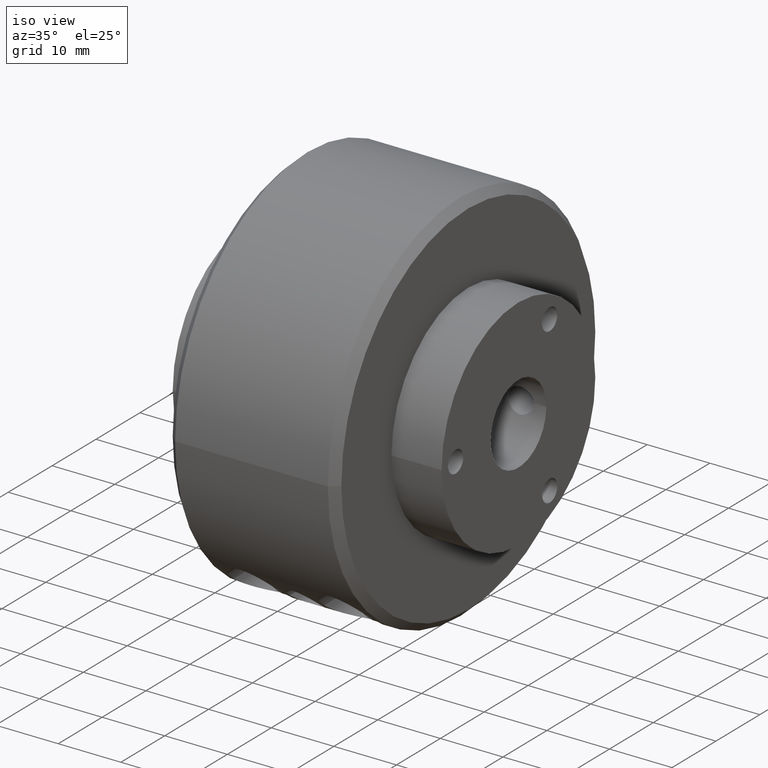
[diagram: clean part render]
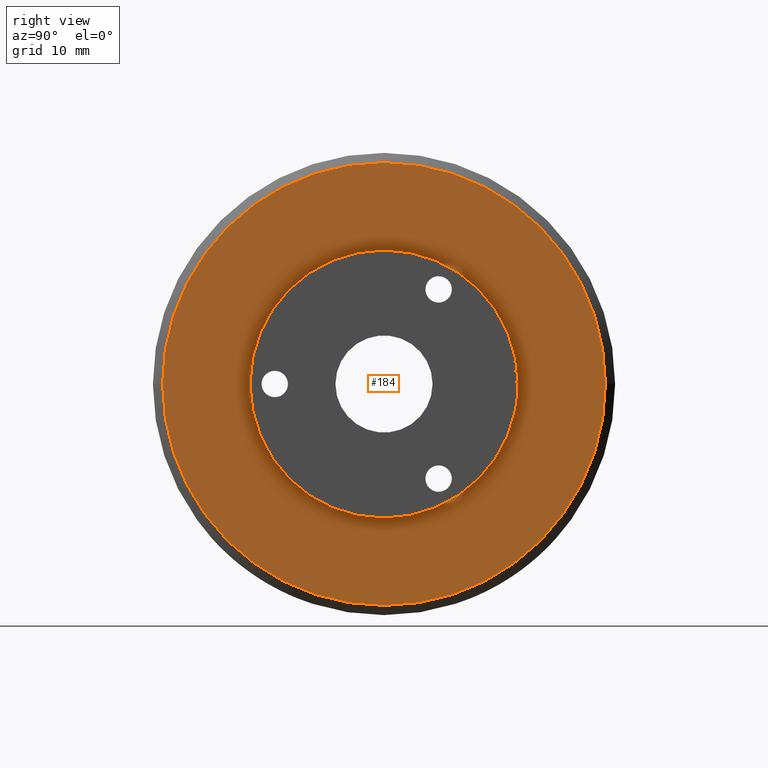
[diagram: tour spotlight — one face highlighted and labeled with its STEP entity id]
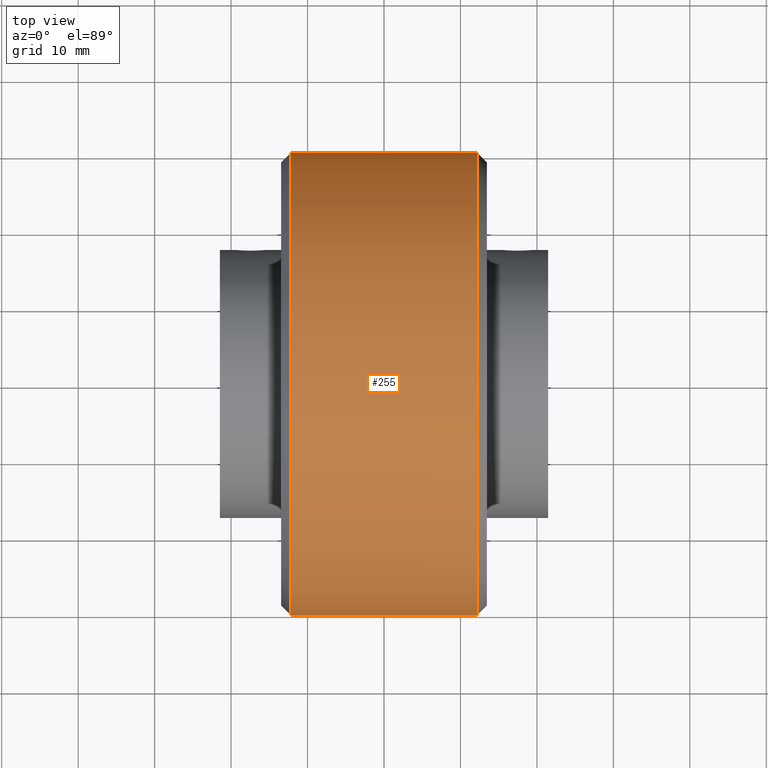
[diagram: tour spotlight — one face highlighted and labeled with its STEP entity id]
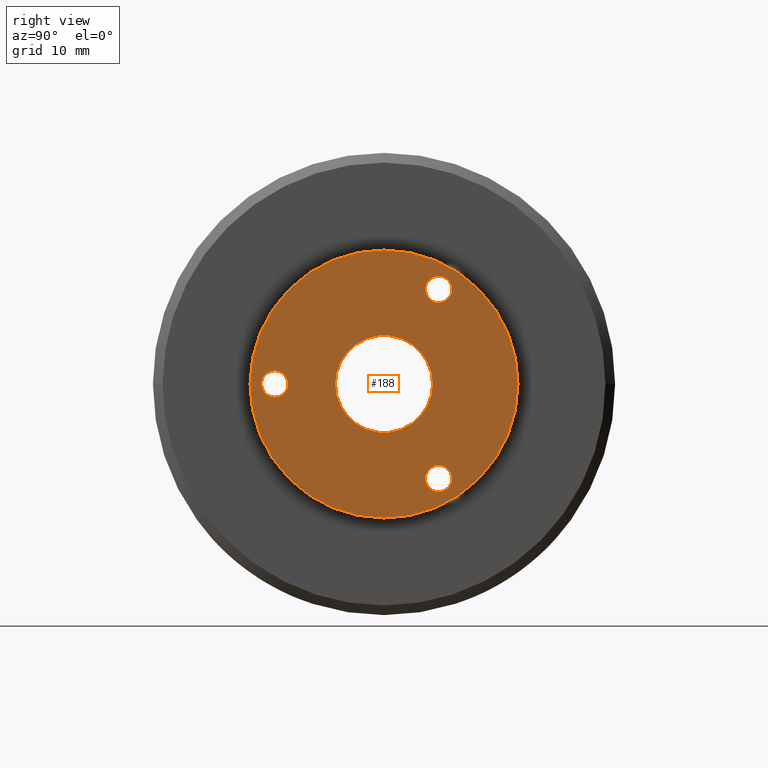
[diagram: tour spotlight — one face highlighted and labeled with its STEP entity id]
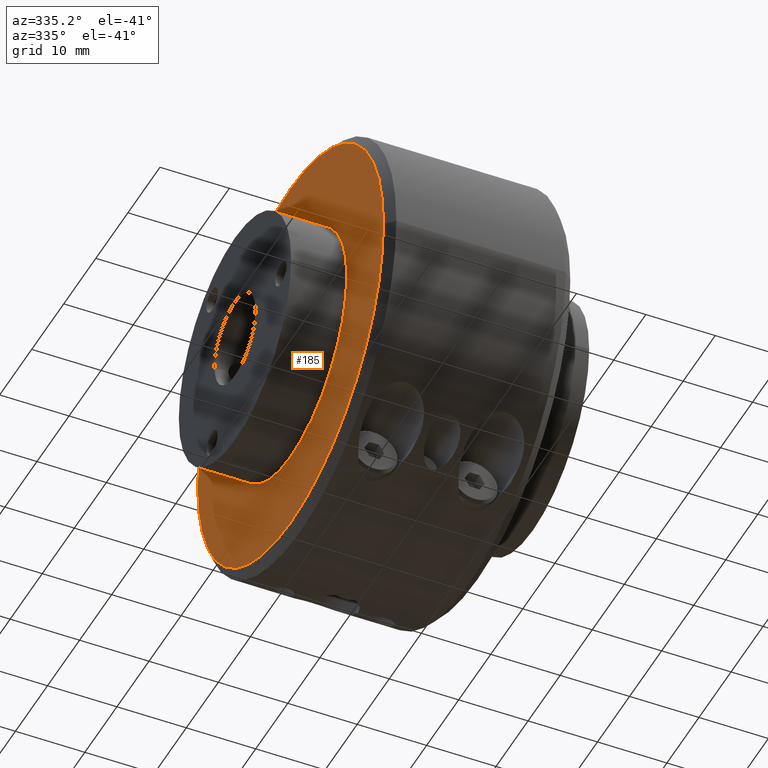
[diagram: tour spotlight — one face highlighted and labeled with its STEP entity id]
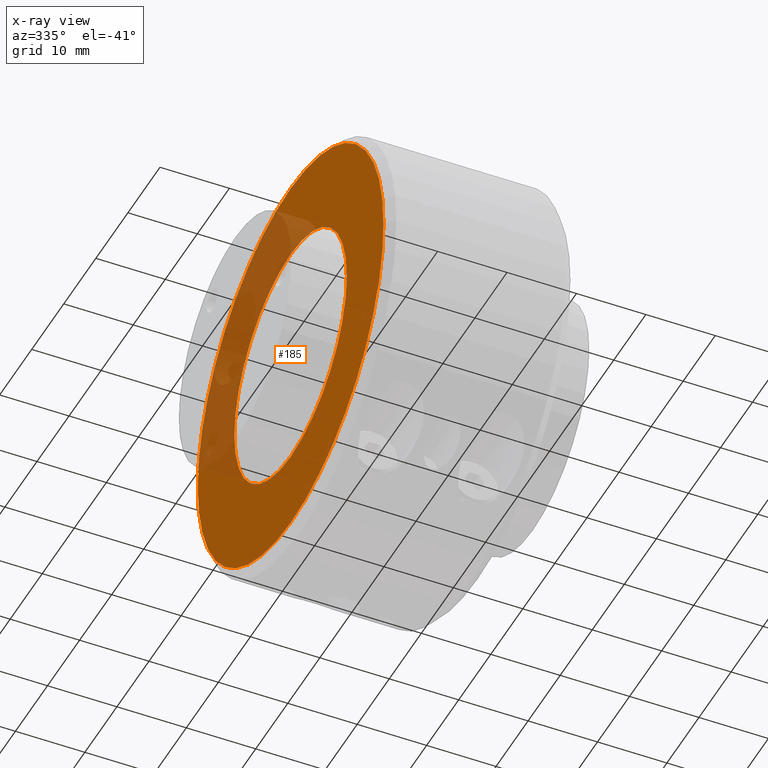
[diagram: x-ray of the same camera — body ghosted, this tour face saturated]
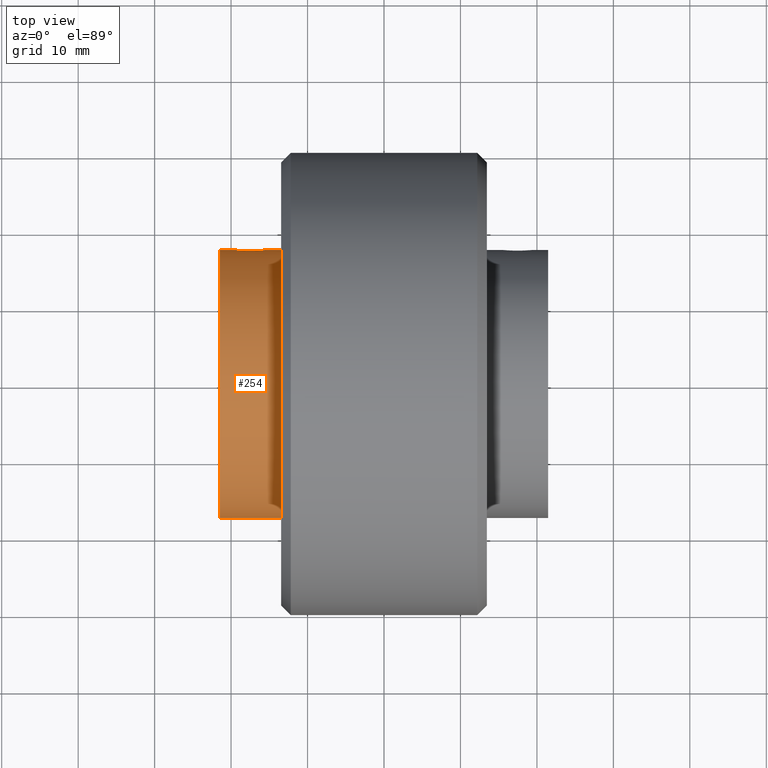
[diagram: tour spotlight — one face highlighted and labeled with its STEP entity id]
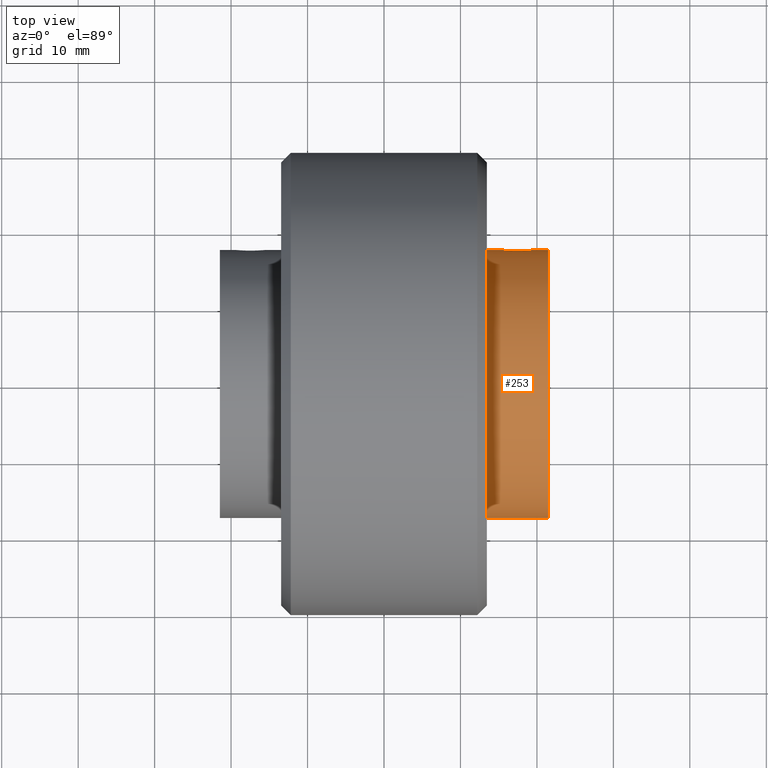
[diagram: tour spotlight — one face highlighted and labeled with its STEP entity id]
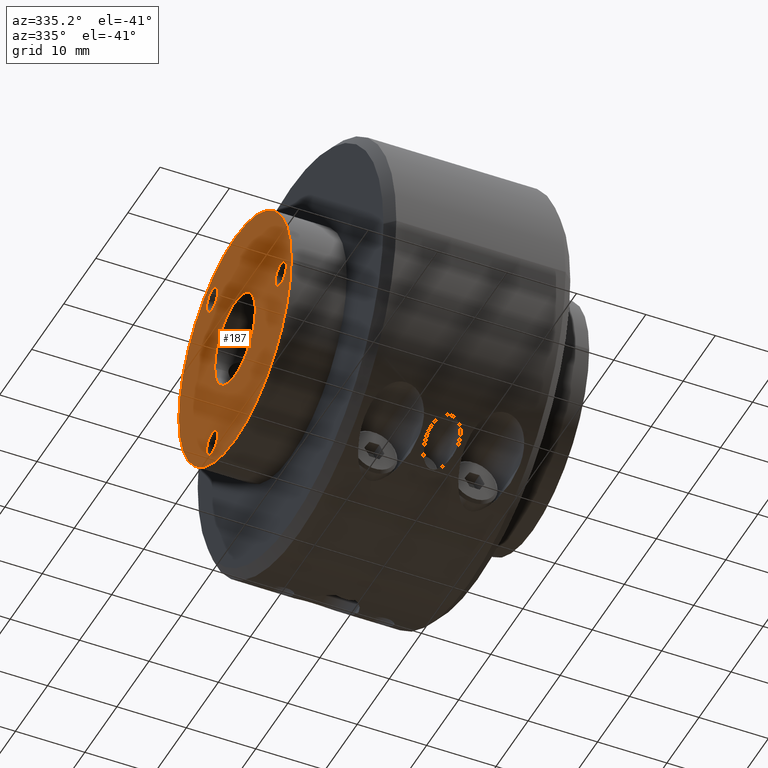
[diagram: tour spotlight — one face highlighted and labeled with its STEP entity id]
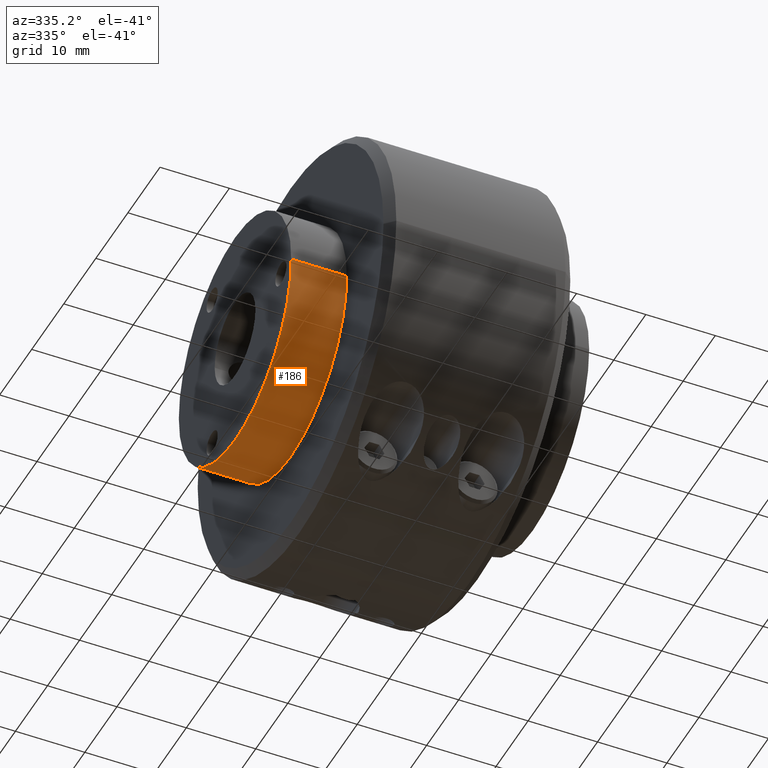
[diagram: tour spotlight — one face highlighted and labeled with its STEP entity id]
A machine part: a face-by-face anatomy tour. The part has 107 B-rep faces; the first image is the clean iso view, then the 8 largest visible faces are spotlighted one at a time (largest first), each with its STEP entity span.

Face 1 — right view, entity #184. In plain terms, the highlighted planar face has unit normal (-1, -0, 0).
Definition (entity closure, byte-faithful):
#134 = FACE_OUTER_BOUND ( 'NONE', #3786, .T. ) ;
#184 = ADVANCED_FACE ( 'NONE', ( #134, #1978 ), #685, .F. ) ;
#310 = CARTESIAN_POINT ( 'NONE',  ( 0.5300000000000001400, 1.683889348827610800E-016, 0.0000000000000000000 ) ) ;
#682 = DIRECTION ( 'NONE',  ( 1.224646799147353200E-016, -1.000000000000000000, 0.0000000000000000000 ) ) ;
#683 = DIRECTION ( 'NONE',  ( -1.000000000000000000, -1.224646799147353200E-016, 0.0000000000000000000 ) ) ;
#685 = PLANE ( 'NONE',  #1834 ) ;
#686 = CARTESIAN_POINT ( 'NONE',  ( 0.5300000000000001400, 1.190000000000000200, 0.0000000000000000000 ) ) ;
#814 = DIRECTION ( 'NONE',  ( 9.897999977044435600E-017, -1.000000000000000000, 0.0000000000000000000 ) ) ;
#818 = CARTESIAN_POINT ( 'NONE',  ( 0.5300000000000002500, 1.683889348827611000E-016, 0.0000000000000000000 ) ) ;
#839 = VERTEX_POINT ( 'NONE', #1556 ) ;
#860 = VERTEX_POINT ( 'NONE', #1567 ) ;
#862 = VERTEX_POINT ( 'NONE', #1568 ) ;
#905 = VERTEX_POINT ( 'NONE', #1594 ) ;
#998 = DIRECTION ( 'NONE',  ( -1.000000000000000000, -1.224646799147353200E-016, -0.0000000000000000000 ) ) ;
#1035 = DIRECTION ( 'NONE',  ( 1.198178944589589100E-016, -1.000000000000000000, 0.0000000000000000000 ) ) ;
#1036 = CARTESIAN_POINT ( 'NONE',  ( 0.5300000000000001400, 1.683889348827610800E-016, 0.0000000000000000000 ) ) ;
#1066 = DIRECTION ( 'NONE',  ( 1.000000000000000000, 1.224646799147353200E-016, 0.0000000000000000000 ) ) ;
#1556 = CARTESIAN_POINT ( 'NONE',  ( 0.5300000000000001400, -0.6899999999999996100, 0.0000000000000000000 ) ) ;
#1567 = CARTESIAN_POINT ( 'NONE',  ( 0.5300000000000001400, 1.140000000000000300, 1.426713521006666400E-016 ) ) ;
#1568 = CARTESIAN_POINT ( 'NONE',  ( 0.5300000000000000300, 0.6899999999999998400, 8.450062914116734400E-017 ) ) ;
#1594 = CARTESIAN_POINT ( 'NONE',  ( 0.5300000000000003600, -1.139999999999999900, 0.0000000000000000000 ) ) ;
#1730 = EDGE_CURVE ( 'NONE', #860, #905, #2549, .T. ) ;
#1766 = EDGE_CURVE ( 'NONE', #839, #862, #2591, .T. ) ;
#1810 = EDGE_CURVE ( 'NONE', #905, #860, #2636, .T. ) ;
#1811 = EDGE_CURVE ( 'NONE', #862, #839, #2637, .T. ) ;
#1834 = AXIS2_PLACEMENT_3D ( 'NONE', #686, #683, #682 ) ;
#1978 = FACE_BOUND ( 'NONE', #2860, .T. ) ;
#2373 = AXIS2_PLACEMENT_3D ( 'NONE', #3109, #3106, #3105 ) ;
#2385 = AXIS2_PLACEMENT_3D ( 'NONE', #310, #3499, #3481 ) ;
#2406 = AXIS2_PLACEMENT_3D ( 'NONE', #818, #1066, #1035 ) ;
#2407 = AXIS2_PLACEMENT_3D ( 'NONE', #1036, #998, #814 ) ;
#2549 = CIRCLE ( 'NONE', #2373, 1.140000000000000100 ) ;
#2591 = CIRCLE ( 'NONE', #2385, 0.6899999999999997200 ) ;
#2636 = CIRCLE ( 'NONE', #2406, 1.140000000000000100 ) ;
#2637 = CIRCLE ( 'NONE', #2407, 0.6899999999999997200 ) ;
#2860 = EDGE_LOOP ( 'NONE', ( #3530, #3529 ) ) ;
#3105 = DIRECTION ( 'NONE',  ( 1.198178944589589100E-016, -1.000000000000000000, 0.0000000000000000000 ) ) ;
#3106 = DIRECTION ( 'NONE',  ( 1.000000000000000000, 1.224646799147353200E-016, 0.0000000000000000000 ) ) ;
#3109 = CARTESIAN_POINT ( 'NONE',  ( 0.5300000000000002500, 1.683889348827611000E-016, 0.0000000000000000000 ) ) ;
#3481 = DIRECTION ( 'NONE',  ( 9.897999977044435600E-017, -1.000000000000000000, 0.0000000000000000000 ) ) ;
#3499 = DIRECTION ( 'NONE',  ( -1.000000000000000000, -1.224646799147353200E-016, -0.0000000000000000000 ) ) ;
#3529 = ORIENTED_EDGE ( 'NONE', *, *, #1811, .T. ) ;
#3530 = ORIENTED_EDGE ( 'NONE', *, *, #1766, .T. ) ;
#3531 = ORIENTED_EDGE ( 'NONE', *, *, #1730, .T. ) ;
#3532 = ORIENTED_EDGE ( 'NONE', *, *, #1810, .T. ) ;
#3786 = EDGE_LOOP ( 'NONE', ( #3532, #3531 ) ) ;

Face 2 — top view, entity #255. In plain terms, the highlighted cylindrical surface (partial cylindrical patch) has radius 30.226 mm, axis along (-1, -0, -0).
Definition (entity closure, byte-faithful):
#255 = ADVANCED_FACE ( 'NONE', ( #2110 ), #2119, .T. ) ;
#450 = DIRECTION ( 'NONE',  ( 1.147835291455572900E-016, -1.000000000000000000, 0.0000000000000000000 ) ) ;
#819 = VERTEX_POINT ( 'NONE', #1543 ) ;
#875 = VERTEX_POINT ( 'NONE', #1575 ) ;
#897 = VERTEX_POINT ( 'NONE', #1590 ) ;
#909 = VERTEX_POINT ( 'NONE', #1597 ) ;
#1322 = DIRECTION ( 'NONE',  ( -1.000000000000000000, -1.224646799147353200E-016, -0.0000000000000000000 ) ) ;
#1323 = CARTESIAN_POINT ( 'NONE',  ( -0.8450000000000000800, 0.0000000000000000000, 0.0000000000000000000 ) ) ;
#1543 = CARTESIAN_POINT ( 'NONE',  ( -0.4800000000000002600, 1.189999999999999900, 1.457329690985350300E-016 ) ) ;
#1575 = CARTESIAN_POINT ( 'NONE',  ( -0.4799999999999999800, -1.190000000000000200, 0.0000000000000000000 ) ) ;
#1590 = CARTESIAN_POINT ( 'NONE',  ( 0.4800000000000004800, -1.189999999999999900, 0.0000000000000000000 ) ) ;
#1597 = CARTESIAN_POINT ( 'NONE',  ( 0.4800000000000002000, 1.190000000000000200, 1.457329690985350300E-016 ) ) ;
#1716 = EDGE_CURVE ( 'NONE', #819, #875, #2528, .T. ) ;
#1720 = EDGE_CURVE ( 'NONE', #897, #909, #2534, .T. ) ;
#1773 = EDGE_CURVE ( 'NONE', #909, #819, #2598, .T. ) ;
#1775 = EDGE_CURVE ( 'NONE', #897, #875, #2601, .T. ) ;
#1906 = AXIS2_PLACEMENT_3D ( 'NONE', #1323, #1322, #450 ) ;
#2110 = FACE_OUTER_BOUND ( 'NONE', #3775, .T. ) ;
#2119 = CYLINDRICAL_SURFACE ( 'NONE', #1906, 1.189999999999999900 ) ;
#2370 = AXIS2_PLACEMENT_3D ( 'NONE', #3214, #3213, #3212 ) ;
#2371 = AXIS2_PLACEMENT_3D ( 'NONE', #3202, #3200, #3199 ) ;
#2528 = CIRCLE ( 'NONE', #2370, 1.189999999999999900 ) ;
#2534 = CIRCLE ( 'NONE', #2371, 1.189999999999999900 ) ;
#2586 = VECTOR ( 'NONE', #3652, 39.37007874015748100 ) ;
#2597 = VECTOR ( 'NONE', #3624, 39.37007874015748100 ) ;
#2598 = LINE ( 'NONE', #3482, #2586 ) ;
#2601 = LINE ( 'NONE', #3040, #2597 ) ;
#3040 = CARTESIAN_POINT ( 'NONE',  ( -0.8449999999999999700, -1.189999999999999900, 0.0000000000000000000 ) ) ;
#3199 = DIRECTION ( 'NONE',  ( 1.147835291455572900E-016, -1.000000000000000000, 0.0000000000000000000 ) ) ;
#3200 = DIRECTION ( 'NONE',  ( -1.000000000000000000, -1.224646799147357600E-016, -0.0000000000000000000 ) ) ;
#3202 = CARTESIAN_POINT ( 'NONE',  ( 0.4800000000000003700, 1.622657008870243500E-016, 0.0000000000000000000 ) ) ;
#3212 = DIRECTION ( 'NONE',  ( -1.147835291455572900E-016, 1.000000000000000000, 0.0000000000000000000 ) ) ;
#3213 = DIRECTION ( 'NONE',  ( 1.000000000000000000, 1.224646799147353700E-016, 0.0000000000000000000 ) ) ;
#3214 = CARTESIAN_POINT ( 'NONE',  ( -0.4800000000000001500, 4.469960816887839200E-017, 0.0000000000000000000 ) ) ;
#3482 = CARTESIAN_POINT ( 'NONE',  ( -0.8450000000000003100, 1.189999999999999900, 1.457329690985350300E-016 ) ) ;
#3587 = ORIENTED_EDGE ( 'NONE', *, *, #1775, .F. ) ;
#3588 = ORIENTED_EDGE ( 'NONE', *, *, #1716, .T. ) ;
#3589 = ORIENTED_EDGE ( 'NONE', *, *, #1773, .T. ) ;
#3590 = ORIENTED_EDGE ( 'NONE', *, *, #1720, .T. ) ;
#3624 = DIRECTION ( 'NONE',  ( -1.000000000000000000, -1.224646799147353200E-016, -0.0000000000000000000 ) ) ;
#3652 = DIRECTION ( 'NONE',  ( -1.000000000000000000, -1.224646799147353200E-016, -0.0000000000000000000 ) ) ;
#3775 = EDGE_LOOP ( 'NONE', ( #3590, #3589, #3588, #3587 ) ) ;

Face 3 — right view, entity #188. In plain terms, the highlighted planar face has unit normal (-1, -0, 0).
Definition (entity closure, byte-faithful):
#39 = ORIENTED_EDGE ( 'NONE', *, *, #1748, .F. ) ;
#49 = ORIENTED_EDGE ( 'NONE', *, *, #1743, .F. ) ;
#70 = ORIENTED_EDGE ( 'NONE', *, *, #1764, .F. ) ;
#84 = ORIENTED_EDGE ( 'NONE', *, *, #1818, .F. ) ;
#105 = ORIENTED_EDGE ( 'NONE', *, *, #1817, .F. ) ;
#116 = ORIENTED_EDGE ( 'NONE', *, *, #1812, .F. ) ;
#124 = ORIENTED_EDGE ( 'NONE', *, *, #1814, .F. ) ;
#162 = ORIENTED_EDGE ( 'NONE', *, *, #1744, .F. ) ;
#165 = ORIENTED_EDGE ( 'NONE', *, *, #1815, .F. ) ;
#181 = ORIENTED_EDGE ( 'NONE', *, *, #1742, .F. ) ;
#188 = ADVANCED_FACE ( 'NONE', ( #1990, #1988, #1992, #1994, #1979 ), #675, .F. ) ;
#379 = DIRECTION ( 'NONE',  ( 0.0000000000000000000, 1.000000000000000000, 0.0000000000000000000 ) ) ;
#380 = DIRECTION ( 'NONE',  ( 1.000000000000000000, 1.193989507720394800E-016, 0.0000000000000000000 ) ) ;
#383 = CARTESIAN_POINT ( 'NONE',  ( 0.8450000000000003100, 1.888529043299595600E-016, 0.0000000000000000000 ) ) ;
#392 = DIRECTION ( 'NONE',  ( 0.0000000000000000000, 0.0000000000000000000, -1.000000000000000000 ) ) ;
#393 = DIRECTION ( 'NONE',  ( 1.000000000000000000, -0.0000000000000000000, -0.0000000000000000000 ) ) ;
#394 = CARTESIAN_POINT ( 'NONE',  ( 0.8450000000000003100, -0.5625000000000000000, -2.048885995248197700E-016 ) ) ;
#395 = DIRECTION ( 'NONE',  ( 0.0000000000000000000, 0.0000000000000000000, -1.000000000000000000 ) ) ;
#396 = DIRECTION ( 'NONE',  ( 1.000000000000000000, -0.0000000000000000000, -0.0000000000000000000 ) ) ;
#397 = CARTESIAN_POINT ( 'NONE',  ( 0.8450000000000003100, 0.2812500000000001700, -0.4871392896287468100 ) ) ;
#398 = DIRECTION ( 'NONE',  ( 0.0000000000000000000, 0.0000000000000000000, -1.000000000000000000 ) ) ;
#399 = DIRECTION ( 'NONE',  ( 1.000000000000000000, -0.0000000000000000000, -0.0000000000000000000 ) ) ;
#422 = CARTESIAN_POINT ( 'NONE',  ( 0.8450000000000003100, 0.2812500000000001700, 0.4871392896287468100 ) ) ;
#667 = DIRECTION ( 'NONE',  ( 1.224646799147353200E-016, -1.000000000000000000, 0.0000000000000000000 ) ) ;
#668 = DIRECTION ( 'NONE',  ( -1.000000000000000000, -1.224646799147353200E-016, 0.0000000000000000000 ) ) ;
#670 = CARTESIAN_POINT ( 'NONE',  ( 0.8450000000000000800, 0.6899999999999998400, 0.0000000000000000000 ) ) ;
#675 = PLANE ( 'NONE',  #1841 ) ;
#794 = DIRECTION ( 'NONE',  ( 0.0000000000000000000, 0.0000000000000000000, -1.000000000000000000 ) ) ;
#830 = VERTEX_POINT ( 'NONE', #1550 ) ;
#833 = VERTEX_POINT ( 'NONE', #1552 ) ;
#854 = VERTEX_POINT ( 'NONE', #1565 ) ;
#866 = VERTEX_POINT ( 'NONE', #1570 ) ;
#869 = VERTEX_POINT ( 'NONE', #1572 ) ;
#878 = VERTEX_POINT ( 'NONE', #1578 ) ;
#888 = VERTEX_POINT ( 'NONE', #1585 ) ;
#899 = VERTEX_POINT ( 'NONE', #1591 ) ;
#900 = DIRECTION ( 'NONE',  ( 1.000000000000000000, 1.193989507720394800E-016, 0.0000000000000000000 ) ) ;
#902 = DIRECTION ( 'NONE',  ( 0.0000000000000000000, 1.000000000000000000, 0.0000000000000000000 ) ) ;
#911 = VERTEX_POINT ( 'NONE', #1598 ) ;
#919 = VERTEX_POINT ( 'NONE', #1603 ) ;
#931 = DIRECTION ( 'NONE',  ( 1.000000000000000000, -0.0000000000000000000, -0.0000000000000000000 ) ) ;
#954 = CARTESIAN_POINT ( 'NONE',  ( 0.8450000000000000800, 2.069653090559027300E-016, 0.0000000000000000000 ) ) ;
#1004 = CARTESIAN_POINT ( 'NONE',  ( 0.8450000000000003100, 0.2812500000000001700, 0.4871392896287468100 ) ) ;
#1007 = DIRECTION ( 'NONE',  ( 0.0000000000000000000, 0.0000000000000000000, -1.000000000000000000 ) ) ;
#1013 = DIRECTION ( 'NONE',  ( 1.979599995408887400E-016, -1.000000000000000000, 0.0000000000000000000 ) ) ;
#1038 = DIRECTION ( 'NONE',  ( 1.000000000000000000, -0.0000000000000000000, -0.0000000000000000000 ) ) ;
#1059 = CARTESIAN_POINT ( 'NONE',  ( 0.8450000000000003100, 0.2812500000000001700, -0.4871392896287468100 ) ) ;
#1090 = DIRECTION ( 'NONE',  ( 0.0000000000000000000, 0.0000000000000000000, -1.000000000000000000 ) ) ;
#1124 = CARTESIAN_POINT ( 'NONE',  ( 0.8450000000000003100, -0.5625000000000000000, -2.048885995248197700E-016 ) ) ;
#1172 = CARTESIAN_POINT ( 'NONE',  ( 0.8450000000000003100, 1.888529043299595600E-016, 0.0000000000000000000 ) ) ;
#1285 = DIRECTION ( 'NONE',  ( -1.000000000000000000, -1.224646799147353200E-016, -0.0000000000000000000 ) ) ;
#1317 = DIRECTION ( 'NONE',  ( 1.000000000000000000, -0.0000000000000000000, -0.0000000000000000000 ) ) ;
#1550 = CARTESIAN_POINT ( 'NONE',  ( 0.8450000000000003100, -0.5625000000000000000, -0.06800000000000000500 ) ) ;
#1552 = CARTESIAN_POINT ( 'NONE',  ( 0.8450000000000003100, 0.2500000000000002200, 0.0000000000000000000 ) ) ;
#1565 = CARTESIAN_POINT ( 'NONE',  ( 0.8450000000000003100, -0.2499999999999998100, 3.061616997868383000E-017 ) ) ;
#1570 = CARTESIAN_POINT ( 'NONE',  ( 0.8449999999999999700, 0.6899999999999998400, 8.450062914116734400E-017 ) ) ;
#1572 = CARTESIAN_POINT ( 'NONE',  ( 0.8450000000000003100, 0.2812500000000001700, -0.4191392896287470200 ) ) ;
#1578 = CARTESIAN_POINT ( 'NONE',  ( 0.8450000000000003100, 0.2812500000000001700, -0.5551392896287465900 ) ) ;
#1585 = CARTESIAN_POINT ( 'NONE',  ( 0.8450000000000003100, 0.2812500000000001700, 0.5551392896287465900 ) ) ;
#1591 = CARTESIAN_POINT ( 'NONE',  ( 0.8450000000000003100, 0.2812500000000001700, 0.4191392896287470200 ) ) ;
#1598 = CARTESIAN_POINT ( 'NONE',  ( 0.8450000000000003100, -0.5625000000000000000, 0.06799999999999958900 ) ) ;
#1603 = CARTESIAN_POINT ( 'NONE',  ( 0.8450000000000003100, -0.6899999999999992800, 0.0000000000000000000 ) ) ;
#1742 = EDGE_CURVE ( 'NONE', #888, #899, #2557, .T. ) ;
#1743 = EDGE_CURVE ( 'NONE', #869, #878, #2558, .T. ) ;
#1744 = EDGE_CURVE ( 'NONE', #911, #830, #2560, .T. ) ;
#1748 = EDGE_CURVE ( 'NONE', #854, #833, #2566, .T. ) ;
#1764 = EDGE_CURVE ( 'NONE', #919, #866, #2588, .T. ) ;
#1812 = EDGE_CURVE ( 'NONE', #830, #911, #2638, .T. ) ;
#1814 = EDGE_CURVE ( 'NONE', #833, #854, #2639, .T. ) ;
#1815 = EDGE_CURVE ( 'NONE', #866, #919, #2640, .T. ) ;
#1817 = EDGE_CURVE ( 'NONE', #899, #888, #2642, .T. ) ;
#1818 = EDGE_CURVE ( 'NONE', #878, #869, #2643, .T. ) ;
#1841 = AXIS2_PLACEMENT_3D ( 'NONE', #670, #668, #667 ) ;
#1979 = FACE_OUTER_BOUND ( 'NONE', #2872, .T. ) ;
#1988 = FACE_BOUND ( 'NONE', #2869, .T. ) ;
#1990 = FACE_BOUND ( 'NONE', #3788, .T. ) ;
#1992 = FACE_BOUND ( 'NONE', #2870, .T. ) ;
#1994 = FACE_BOUND ( 'NONE', #2871, .T. ) ;
#2374 = AXIS2_PLACEMENT_3D ( 'NONE', #397, #396, #395 ) ;
#2375 = AXIS2_PLACEMENT_3D ( 'NONE', #394, #393, #392 ) ;
#2376 = AXIS2_PLACEMENT_3D ( 'NONE', #422, #399, #398 ) ;
#2378 = AXIS2_PLACEMENT_3D ( 'NONE', #383, #380, #379 ) ;
#2384 = AXIS2_PLACEMENT_3D ( 'NONE', #3495, #3477, #3478 ) ;
#2408 = AXIS2_PLACEMENT_3D ( 'NONE', #1124, #1317, #794 ) ;
#2409 = AXIS2_PLACEMENT_3D ( 'NONE', #954, #1285, #1013 ) ;
#2410 = AXIS2_PLACEMENT_3D ( 'NONE', #1172, #900, #902 ) ;
#2412 = AXIS2_PLACEMENT_3D ( 'NONE', #1004, #1038, #1090 ) ;
#2413 = AXIS2_PLACEMENT_3D ( 'NONE', #1059, #931, #1007 ) ;
#2557 = CIRCLE ( 'NONE', #2376, 0.06799999999999979700 ) ;
#2558 = CIRCLE ( 'NONE', #2374, 0.06799999999999979700 ) ;
#2560 = CIRCLE ( 'NONE', #2375, 0.06799999999999979700 ) ;
#2566 = CIRCLE ( 'NONE', #2378, 0.2500000000000000000 ) ;
#2588 = CIRCLE ( 'NONE', #2384, 0.6899999999999996100 ) ;
#2638 = CIRCLE ( 'NONE', #2408, 0.06799999999999979700 ) ;
#2639 = CIRCLE ( 'NONE', #2410, 0.2500000000000000000 ) ;
#2640 = CIRCLE ( 'NONE', #2409, 0.6899999999999996100 ) ;
#2642 = CIRCLE ( 'NONE', #2412, 0.06799999999999979700 ) ;
#2643 = CIRCLE ( 'NONE', #2413, 0.06799999999999979700 ) ;
#2869 = EDGE_LOOP ( 'NONE', ( #84, #49 ) ) ;
#2870 = EDGE_LOOP ( 'NONE', ( #116, #162 ) ) ;
#2871 = EDGE_LOOP ( 'NONE', ( #124, #39 ) ) ;
#2872 = EDGE_LOOP ( 'NONE', ( #70, #165 ) ) ;
#3477 = DIRECTION ( 'NONE',  ( -1.000000000000000000, -1.224646799147353200E-016, -0.0000000000000000000 ) ) ;
#3478 = DIRECTION ( 'NONE',  ( 1.979599995408887400E-016, -1.000000000000000000, 0.0000000000000000000 ) ) ;
#3495 = CARTESIAN_POINT ( 'NONE',  ( 0.8450000000000000800, 2.069653090559027300E-016, 0.0000000000000000000 ) ) ;
#3788 = EDGE_LOOP ( 'NONE', ( #105, #181 ) ) ;

Face 4 — auxiliary view, entity #185. An x-ray twin of the same camera follows (body ghosted, this face saturated) — the face is partly hidden behind the body. In plain terms, the highlighted planar face has unit normal (1, 0, 0).
Definition (entity closure, byte-faithful):
#12 = FACE_BOUND ( 'NONE', #2861, .T. ) ;
#185 = ADVANCED_FACE ( 'NONE', ( #1977, #12 ), #688, .F. ) ;
#442 = DIRECTION ( 'NONE',  ( -1.000000000000000000, -1.224646799147353200E-016, -0.0000000000000000000 ) ) ;
#444 = DIRECTION ( 'NONE',  ( 9.897999977044435600E-017, -1.000000000000000000, 0.0000000000000000000 ) ) ;
#678 = DIRECTION ( 'NONE',  ( -1.224646799147353200E-016, 1.000000000000000000, 0.0000000000000000000 ) ) ;
#679 = DIRECTION ( 'NONE',  ( 1.000000000000000000, 1.224646799147353200E-016, 0.0000000000000000000 ) ) ;
#688 = PLANE ( 'NONE',  #1833 ) ;
#689 = CARTESIAN_POINT ( 'NONE',  ( -0.5300000000000000300, 1.189999999999999900, 0.0000000000000000000 ) ) ;
#832 = VERTEX_POINT ( 'NONE', #1551 ) ;
#838 = VERTEX_POINT ( 'NONE', #1555 ) ;
#879 = VERTEX_POINT ( 'NONE', #1579 ) ;
#894 = VERTEX_POINT ( 'NONE', #1588 ) ;
#1092 = DIRECTION ( 'NONE',  ( -1.198178944589588900E-016, 1.000000000000000000, 0.0000000000000000000 ) ) ;
#1107 = CARTESIAN_POINT ( 'NONE',  ( -0.5299999999999999200, 3.857637417314165200E-017, 0.0000000000000000000 ) ) ;
#1170 = DIRECTION ( 'NONE',  ( -1.000000000000000000, -1.224646799147353200E-016, -0.0000000000000000000 ) ) ;
#1246 = CARTESIAN_POINT ( 'NONE',  ( -0.5299999999999999200, 3.857637417314165800E-017, 0.0000000000000000000 ) ) ;
#1268 = DIRECTION ( 'NONE',  ( -1.000000000000000000, -1.224646799147353200E-016, -0.0000000000000000000 ) ) ;
#1305 = DIRECTION ( 'NONE',  ( 9.897999977044435600E-017, -1.000000000000000000, 0.0000000000000000000 ) ) ;
#1551 = CARTESIAN_POINT ( 'NONE',  ( -0.5300000000000000300, 0.6899999999999997200, 8.450062914116734400E-017 ) ) ;
#1555 = CARTESIAN_POINT ( 'NONE',  ( -0.5299999999999999200, -0.6899999999999997200, 0.0000000000000000000 ) ) ;
#1579 = CARTESIAN_POINT ( 'NONE',  ( -0.5299999999999996900, -1.140000000000000300, 1.426713521006666900E-016 ) ) ;
#1588 = CARTESIAN_POINT ( 'NONE',  ( -0.5300000000000000300, 1.140000000000000300, 0.0000000000000000000 ) ) ;
#1726 = EDGE_CURVE ( 'NONE', #879, #894, #2541, .T. ) ;
#1770 = EDGE_CURVE ( 'NONE', #838, #832, #2596, .T. ) ;
#1809 = EDGE_CURVE ( 'NONE', #832, #838, #2635, .T. ) ;
#1833 = AXIS2_PLACEMENT_3D ( 'NONE', #689, #679, #678 ) ;
#1977 = FACE_OUTER_BOUND ( 'NONE', #3790, .T. ) ;
#2264 = EDGE_CURVE ( 'NONE', #894, #879, #2669, .T. ) ;
#2368 = AXIS2_PLACEMENT_3D ( 'NONE', #3119, #3118, #3117 ) ;
#2387 = AXIS2_PLACEMENT_3D ( 'NONE', #3485, #442, #444 ) ;
#2403 = AXIS2_PLACEMENT_3D ( 'NONE', #1107, #1268, #1305 ) ;
#2430 = AXIS2_PLACEMENT_3D ( 'NONE', #1246, #1170, #1092 ) ;
#2541 = CIRCLE ( 'NONE', #2368, 1.140000000000000300 ) ;
#2596 = CIRCLE ( 'NONE', #2387, 0.6899999999999997200 ) ;
#2635 = CIRCLE ( 'NONE', #2403, 0.6899999999999997200 ) ;
#2669 = CIRCLE ( 'NONE', #2430, 1.140000000000000300 ) ;
#2861 = EDGE_LOOP ( 'NONE', ( #3526, #3525 ) ) ;
#3117 = DIRECTION ( 'NONE',  ( -1.198178944589588900E-016, 1.000000000000000000, 0.0000000000000000000 ) ) ;
#3118 = DIRECTION ( 'NONE',  ( -1.000000000000000000, -1.224646799147353200E-016, -0.0000000000000000000 ) ) ;
#3119 = CARTESIAN_POINT ( 'NONE',  ( -0.5299999999999999200, 3.857637417314165800E-017, 0.0000000000000000000 ) ) ;
#3485 = CARTESIAN_POINT ( 'NONE',  ( -0.5299999999999999200, 3.857637417314165200E-017, 0.0000000000000000000 ) ) ;
#3525 = ORIENTED_EDGE ( 'NONE', *, *, #1809, .F. ) ;
#3526 = ORIENTED_EDGE ( 'NONE', *, *, #1770, .F. ) ;
#3527 = ORIENTED_EDGE ( 'NONE', *, *, #1726, .T. ) ;
#3528 = ORIENTED_EDGE ( 'NONE', *, *, #2264, .T. ) ;
#3790 = EDGE_LOOP ( 'NONE', ( #3528, #3527 ) ) ;

Face 5 — top view, entity #254. In plain terms, the highlighted cylindrical surface (partial cylindrical patch) has radius 17.526 mm, axis along (-1, -0, -0).
Definition (entity closure, byte-faithful):
#254 = ADVANCED_FACE ( 'NONE', ( #2108 ), #2117, .T. ) ;
#312 = CARTESIAN_POINT ( 'NONE',  ( -0.6875000000000000000, 0.6854048073948705300, 0.07949999999999979300 ) ) ;
#313 = CARTESIAN_POINT ( 'NONE',  ( -0.6823104820673118200, 0.6854048073948705300, 0.07949999999999976500 ) ) ;
#314 = CARTESIAN_POINT ( 'NONE',  ( -0.6770389213419536500, 0.6854656931776165200, 0.07897994383718702500 ) ) ;
#315 = CARTESIAN_POINT ( 'NONE',  ( -0.6668446046294652700, 0.6856970378488546100, 0.07694556736617089200 ) ) ;
#316 = CARTESIAN_POINT ( 'NONE',  ( -0.6618894005762755400, 0.6858662677903750700, 0.07544191153126270100 ) ) ;
#317 = CARTESIAN_POINT ( 'NONE',  ( -0.6522642142732426600, 0.6862930824987518700, 0.07145505036420717000 ) ) ;
#318 = CARTESIAN_POINT ( 'NONE',  ( -0.6476149576245636700, 0.6865508931365197400, 0.06896538698066499700 ) ) ;
#319 = CARTESIAN_POINT ( 'NONE',  ( -0.6390092914903147100, 0.6871045488664985200, 0.06321148942171776800 ) ) ;
#320 = CARTESIAN_POINT ( 'NONE',  ( -0.6349977151017447400, 0.6874027740063873800, 0.05992723002568176700 ) ) ;
#322 = CARTESIAN_POINT ( 'NONE',  ( -0.6275793253740960000, 0.6880091358694031500, 0.05250976642935165100 ) ) ;
#323 = CARTESIAN_POINT ( 'NONE',  ( -0.6242913861017899100, 0.6883072536244937400, 0.04849450952260188400 ) ) ;
#324 = CARTESIAN_POINT ( 'NONE',  ( -0.6185364773985491100, 0.6888595749285630900, 0.03988833006243731200 ) ) ;
#325 = CARTESIAN_POINT ( 'NONE',  ( -0.6160473101173160600, 0.6891163218152220900, 0.03524079632771202200 ) ) ;
#326 = CARTESIAN_POINT ( 'NONE',  ( -0.6120588020746939900, 0.6895412913271218300, 0.02561300983635239600 ) ) ;
#327 = CARTESIAN_POINT ( 'NONE',  ( -0.6105546716547964900, 0.6897095849994642200, 0.02065657440666203800 ) ) ;
#328 = CARTESIAN_POINT ( 'NONE',  ( -0.6085198390509848300, 0.6899395581567372400, 0.01046000940902105100 ) ) ;
#329 = CARTESIAN_POINT ( 'NONE',  ( -0.6080000000000002100, 0.6900000000000000600, 0.005188975815473604600 ) ) ;
#337 = CARTESIAN_POINT ( 'NONE',  ( -0.6080000000000002100, 0.6899999999999997200, 8.450062808490804500E-017 ) ) ;
#442 = DIRECTION ( 'NONE',  ( -1.000000000000000000, -1.224646799147353200E-016, -0.0000000000000000000 ) ) ;
#444 = DIRECTION ( 'NONE',  ( 9.897999977044435600E-017, -1.000000000000000000, 0.0000000000000000000 ) ) ;
#445 = CARTESIAN_POINT ( 'NONE',  ( -0.8449999999999999700, -0.6899999999999997200, 0.0000000000000000000 ) ) ;
#446 = DIRECTION ( 'NONE',  ( -1.000000000000000000, -1.224646799147353200E-016, -0.0000000000000000000 ) ) ;
#448 = CARTESIAN_POINT ( 'NONE',  ( -0.8450000000000000800, 0.0000000000000000000, 0.0000000000000000000 ) ) ;
#449 = DIRECTION ( 'NONE',  ( -1.000000000000000000, -1.224646799147353200E-016, -0.0000000000000000000 ) ) ;
#453 = DIRECTION ( 'NONE',  ( 1.979599995408887100E-016, -1.000000000000000000, 0.0000000000000000000 ) ) ;
#805 = VERTEX_POINT ( 'NONE', #1536 ) ;
#832 = VERTEX_POINT ( 'NONE', #1551 ) ;
#838 = VERTEX_POINT ( 'NONE', #1555 ) ;
#844 = VERTEX_POINT ( 'NONE', #1560 ) ;
#850 = VERTEX_POINT ( 'NONE', #1563 ) ;
#884 = VERTEX_POINT ( 'NONE', #1582 ) ;
#886 = VERTEX_POINT ( 'NONE', #1583 ) ;
#1536 = CARTESIAN_POINT ( 'NONE',  ( -0.8449999999999997500, -0.6899999999999996100, 0.0000000000000000000 ) ) ;
#1551 = CARTESIAN_POINT ( 'NONE',  ( -0.5300000000000000300, 0.6899999999999997200, 8.450062914116734400E-017 ) ) ;
#1555 = CARTESIAN_POINT ( 'NONE',  ( -0.5299999999999999200, -0.6899999999999997200, 0.0000000000000000000 ) ) ;
#1560 = CARTESIAN_POINT ( 'NONE',  ( -0.6080000000000002100, 0.6899999999999997200, 8.450062808490804500E-017 ) ) ;
#1563 = CARTESIAN_POINT ( 'NONE',  ( -0.8449999999999999700, 0.6899999999999996100, 8.450062914116733200E-017 ) ) ;
#1582 = CARTESIAN_POINT ( 'NONE',  ( -0.7669999999999997900, 0.6899999999999997200, 8.457137593923308800E-017 ) ) ;
#1583 = CARTESIAN_POINT ( 'NONE',  ( -0.6875000000000000000, 0.6854048073948705300, 0.07949999999999979300 ) ) ;
#1638 = DIRECTION ( 'NONE',  ( 1.979599995408887400E-016, -1.000000000000000000, 0.0000000000000000000 ) ) ;
#1734 = EDGE_CURVE ( 'NONE', #886, #884, #3000, .T. ) ;
#1761 = EDGE_CURVE ( 'NONE', #844, #886, #3023, .T. ) ;
#1767 = EDGE_CURVE ( 'NONE', #884, #850, #2590, .T. ) ;
#1769 = EDGE_CURVE ( 'NONE', #832, #844, #2593, .T. ) ;
#1770 = EDGE_CURVE ( 'NONE', #838, #832, #2596, .T. ) ;
#1771 = EDGE_CURVE ( 'NONE', #838, #805, #2592, .T. ) ;
#1772 = EDGE_CURVE ( 'NONE', #805, #850, #2599, .T. ) ;
#1905 = AXIS2_PLACEMENT_3D ( 'NONE', #448, #449, #453 ) ;
#2108 = FACE_OUTER_BOUND ( 'NONE', #3774, .T. ) ;
#2117 = CYLINDRICAL_SURFACE ( 'NONE', #1905, 0.6899999999999997200 ) ;
#2387 = AXIS2_PLACEMENT_3D ( 'NONE', #3485, #442, #444 ) ;
#2388 = AXIS2_PLACEMENT_3D ( 'NONE', #3486, #3060, #1638 ) ;
#2579 = VECTOR ( 'NONE', #3494, 39.37007874015748100 ) ;
#2587 = VECTOR ( 'NONE', #446, 39.37007874015748100 ) ;
#2589 = VECTOR ( 'NONE', #3475, 39.37007874015748100 ) ;
#2590 = LINE ( 'NONE', #3491, #2579 ) ;
#2592 = LINE ( 'NONE', #445, #2587 ) ;
#2593 = LINE ( 'NONE', #3493, #2589 ) ;
#2596 = CIRCLE ( 'NONE', #2387, 0.6899999999999997200 ) ;
#2599 = CIRCLE ( 'NONE', #2388, 0.6899999999999996100 ) ;
#3000 = B_SPLINE_CURVE_WITH_KNOTS ( 'NONE', 3,
 ( #3084, #3078, #3077, #3076, #3075, #3072, #3071, #3069, #3068, #3067, #3066, #3064, #3063, #3062 ),
 .UNSPECIFIED., .F., .F.,
 ( 4, 2, 2, 2, 2, 2, 4 ),
 ( 0.006318494412147325800, 0.007108485187194415700, 0.007898475962241503800, 0.008293471349765045200, 0.008688466737288586700, 0.009083462124812126400, 0.009478457512335667800 ),
 .UNSPECIFIED. ) ;
#3023 = B_SPLINE_CURVE_WITH_KNOTS ( 'NONE', 3,
 ( #337, #329, #328, #327, #326, #325, #324, #323, #322, #320, #319, #318, #317, #316, #315, #314, #313, #312 ),
 .UNSPECIFIED., .F., .F.,
 ( 4, 2, 2, 2, 2, 2, 2, 2, 4 ),
 ( 0.003159984218518236700, 0.003554797992721874500, 0.003949611766925512300, 0.004344425541129147400, 0.004739239315332783400, 0.005134053089536418600, 0.005528866863740053800, 0.005923680637943689800, 0.006318494412147325800 ),
 .UNSPECIFIED. ) ;
#3060 = DIRECTION ( 'NONE',  ( -1.000000000000000000, -1.224646799147353200E-016, -0.0000000000000000000 ) ) ;
#3062 = CARTESIAN_POINT ( 'NONE',  ( -0.7669999999999997900, 0.6899999999999997200, 8.457137593923308800E-017 ) ) ;
#3063 = CARTESIAN_POINT ( 'NONE',  ( -0.7669999999999993500, 0.6899999999999995000, 0.005258368078834651700 ) ) ;
#3064 = CARTESIAN_POINT ( 'NONE',  ( -0.7664834416469718000, 0.6899399423626456600, 0.01042775372812172800 ) ) ;
#3066 = CARTESIAN_POINT ( 'NONE',  ( -0.7644605153283806600, 0.6897112881000137000, 0.02059614484812617700 ) ) ;
#3067 = CARTESIAN_POINT ( 'NONE',  ( -0.7629293305165844000, 0.6895399845132971200, 0.02564827130556014700 ) ) ;
#3068 = CARTESIAN_POINT ( 'NONE',  ( -0.7589348713068703200, 0.6891144659481807100, 0.03527714393930817700 ) ) ;
#3069 = CARTESIAN_POINT ( 'NONE',  ( -0.7564915329156236500, 0.6888623483378236700, 0.03984210366008347800 ) ) ;
#3071 = CARTESIAN_POINT ( 'NONE',  ( -0.7507214826245598400, 0.6883084041392352200, 0.04847957273801914400 ) ) ;
#3072 = CARTESIAN_POINT ( 'NONE',  ( -0.7473640938078144300, 0.6880044353269047000, 0.05256820516567906700 ) ) ;
#3075 = CARTESIAN_POINT ( 'NONE',  ( -0.7363632574085460200, 0.6871054803542336900, 0.06356206228964804400 ) ) ;
#3076 = CARTESIAN_POINT ( 'NONE',  ( -0.7274976991489996400, 0.6865042850560129100, 0.06948214563634162700 ) ) ;
#3077 = CARTESIAN_POINT ( 'NONE',  ( -0.7083547928334275000, 0.6856553360451435000, 0.07741228659146103000 ) ) ;
#3078 = CARTESIAN_POINT ( 'NONE',  ( -0.6978838101951596600, 0.6854048073948709700, 0.07949999999999980700 ) ) ;
#3084 = CARTESIAN_POINT ( 'NONE',  ( -0.6875000000000000000, 0.6854048073948705300, 0.07949999999999979300 ) ) ;
#3475 = DIRECTION ( 'NONE',  ( -1.000000000000000000, -1.224646799147353200E-016, -0.0000000000000000000 ) ) ;
#3485 = CARTESIAN_POINT ( 'NONE',  ( -0.5299999999999999200, 3.857637417314165200E-017, 0.0000000000000000000 ) ) ;
#3486 = CARTESIAN_POINT ( 'NONE',  ( -0.8449999999999998600, 2.707608700635710600E-032, 0.0000000000000000000 ) ) ;
#3491 = CARTESIAN_POINT ( 'NONE',  ( -0.8450000000000003100, 0.6899999999999997200, 8.450062914116734400E-017 ) ) ;
#3493 = CARTESIAN_POINT ( 'NONE',  ( -0.8450000000000003100, 0.6899999999999997200, 8.450062914116734400E-017 ) ) ;
#3494 = DIRECTION ( 'NONE',  ( -1.000000000000000000, -1.224646799147353200E-016, -0.0000000000000000000 ) ) ;
#3591 = ORIENTED_EDGE ( 'NONE', *, *, #1771, .F. ) ;
#3592 = ORIENTED_EDGE ( 'NONE', *, *, #1772, .F. ) ;
#3593 = ORIENTED_EDGE ( 'NONE', *, *, #1767, .T. ) ;
#3594 = ORIENTED_EDGE ( 'NONE', *, *, #1734, .T. ) ;
#3595 = ORIENTED_EDGE ( 'NONE', *, *, #1761, .T. ) ;
#3596 = ORIENTED_EDGE ( 'NONE', *, *, #1769, .T. ) ;
#3597 = ORIENTED_EDGE ( 'NONE', *, *, #1770, .T. ) ;
#3774 = EDGE_LOOP ( 'NONE', ( #3597, #3596, #3595, #3594, #3593, #3592, #3591 ) ) ;

Face 6 — top view, entity #253. In plain terms, the highlighted cylindrical surface (partial cylindrical patch) has radius 17.526 mm, axis along (-1, -0, -0).
Definition (entity closure, byte-faithful):
#253 = ADVANCED_FACE ( 'NONE', ( #2106 ), #2115, .T. ) ;
#295 = CARTESIAN_POINT ( 'NONE',  ( 0.7273850423754362200, 0.6865508931365201800, 0.06896538698066498300 ) ) ;
#297 = CARTESIAN_POINT ( 'NONE',  ( 0.7359907085096852900, 0.6871045488664988500, 0.06321148942171776800 ) ) ;
#300 = CARTESIAN_POINT ( 'NONE',  ( 0.7400022848982547000, 0.6874027740063879400, 0.05992723002568178100 ) ) ;
#301 = CARTESIAN_POINT ( 'NONE',  ( 0.6875000000000000000, 0.6854048073948707500, 0.07949999999999972400 ) ) ;
#302 = CARTESIAN_POINT ( 'NONE',  ( 0.7474206746259038900, 0.6880091358694031500, 0.05250976642935172700 ) ) ;
#303 = CARTESIAN_POINT ( 'NONE',  ( 0.7507086138982105300, 0.6883072536244935200, 0.04849450952260175900 ) ) ;
#304 = CARTESIAN_POINT ( 'NONE',  ( 0.7564635226014510000, 0.6888595749285633100, 0.03988833006243722200 ) ) ;
#305 = CARTESIAN_POINT ( 'NONE',  ( 0.7589526898826839400, 0.6891163218152220900, 0.03524079632771202200 ) ) ;
#306 = CARTESIAN_POINT ( 'NONE',  ( 0.7629411979253060100, 0.6895412913271221600, 0.02561300983635240700 ) ) ;
#307 = CARTESIAN_POINT ( 'NONE',  ( 0.7644453283452032900, 0.6897095849994642200, 0.02065657440666204100 ) ) ;
#308 = CARTESIAN_POINT ( 'NONE',  ( 0.7664801609490149400, 0.6899395581567374600, 0.01046000940902106600 ) ) ;
#309 = CARTESIAN_POINT ( 'NONE',  ( 0.7669999999999994600, 0.6900000000000000600, 0.005188975815473628900 ) ) ;
#310 = CARTESIAN_POINT ( 'NONE',  ( 0.5300000000000001400, 1.683889348827610800E-016, 0.0000000000000000000 ) ) ;
#330 = CARTESIAN_POINT ( 'NONE',  ( 0.7669999999999997900, 0.6899999999999998400, 8.450062808481487400E-017 ) ) ;
#341 = DIRECTION ( 'NONE',  ( -1.000000000000000000, -1.224646799147353200E-016, -0.0000000000000000000 ) ) ;
#381 = CARTESIAN_POINT ( 'NONE',  ( -0.8450000000000003100, 0.6899999999999997200, 8.450062914116734400E-017 ) ) ;
#423 = CARTESIAN_POINT ( 'NONE',  ( 0.6080000000000002100, 0.6899999999999998400, 8.457137593550618900E-017 ) ) ;
#424 = CARTESIAN_POINT ( 'NONE',  ( 0.6080000000000001000, 0.6899999999999992800, 0.005258368078834617000 ) ) ;
#425 = CARTESIAN_POINT ( 'NONE',  ( 0.6085165583530284300, 0.6899399423626455500, 0.01042775372812167200 ) ) ;
#426 = CARTESIAN_POINT ( 'NONE',  ( 0.6105394846716191100, 0.6897112881000135900, 0.02059614484812611500 ) ) ;
#427 = CARTESIAN_POINT ( 'NONE',  ( 0.6120706694834154900, 0.6895399845132970100, 0.02564827130556012300 ) ) ;
#428 = CARTESIAN_POINT ( 'NONE',  ( 0.6160651286931296800, 0.6891144659481811500, 0.03527714393930812800 ) ) ;
#429 = CARTESIAN_POINT ( 'NONE',  ( 0.6185084670843765700, 0.6888623483378235600, 0.03984210366008338100 ) ) ;
#432 = CARTESIAN_POINT ( 'NONE',  ( 0.6242785173754401600, 0.6883084041392354400, 0.04847957273801903300 ) ) ;
#433 = CARTESIAN_POINT ( 'NONE',  ( 0.6276359061921856800, 0.6880044353269045800, 0.05256820516567894300 ) ) ;
#434 = CARTESIAN_POINT ( 'NONE',  ( 0.6386367425914540900, 0.6871054803542340200, 0.06356206228964797500 ) ) ;
#435 = CARTESIAN_POINT ( 'NONE',  ( 0.6475023008510003600, 0.6865042850560133500, 0.06948214563634157200 ) ) ;
#436 = CARTESIAN_POINT ( 'NONE',  ( 0.6666452071665726100, 0.6856553360451437300, 0.07741228659146097400 ) ) ;
#437 = CARTESIAN_POINT ( 'NONE',  ( 0.6771161898048404500, 0.6854048073948709700, 0.07949999999999973800 ) ) ;
#451 = CARTESIAN_POINT ( 'NONE',  ( -0.8450000000000000800, 0.0000000000000000000, 0.0000000000000000000 ) ) ;
#452 = DIRECTION ( 'NONE',  ( -1.000000000000000000, -1.224646799147353200E-016, -0.0000000000000000000 ) ) ;
#456 = DIRECTION ( 'NONE',  ( 1.979599995408887100E-016, -1.000000000000000000, 0.0000000000000000000 ) ) ;
#825 = VERTEX_POINT ( 'NONE', #1547 ) ;
#839 = VERTEX_POINT ( 'NONE', #1556 ) ;
#862 = VERTEX_POINT ( 'NONE', #1568 ) ;
#866 = VERTEX_POINT ( 'NONE', #1570 ) ;
#887 = VERTEX_POINT ( 'NONE', #1584 ) ;
#896 = VERTEX_POINT ( 'NONE', #1589 ) ;
#919 = VERTEX_POINT ( 'NONE', #1603 ) ;
#1547 = CARTESIAN_POINT ( 'NONE',  ( 0.6080000000000002100, 0.6899999999999998400, 8.457137593550618900E-017 ) ) ;
#1556 = CARTESIAN_POINT ( 'NONE',  ( 0.5300000000000001400, -0.6899999999999996100, 0.0000000000000000000 ) ) ;
#1568 = CARTESIAN_POINT ( 'NONE',  ( 0.5300000000000000300, 0.6899999999999998400, 8.450062914116734400E-017 ) ) ;
#1570 = CARTESIAN_POINT ( 'NONE',  ( 0.8449999999999999700, 0.6899999999999998400, 8.450062914116734400E-017 ) ) ;
#1584 = CARTESIAN_POINT ( 'NONE',  ( 0.7669999999999997900, 0.6899999999999998400, 8.450062808481487400E-017 ) ) ;
#1589 = CARTESIAN_POINT ( 'NONE',  ( 0.6875000000000000000, 0.6854048073948707500, 0.07949999999999972400 ) ) ;
#1603 = CARTESIAN_POINT ( 'NONE',  ( 0.8450000000000003100, -0.6899999999999992800, 0.0000000000000000000 ) ) ;
#1740 = EDGE_CURVE ( 'NONE', #896, #825, #3010, .T. ) ;
#1756 = EDGE_CURVE ( 'NONE', #825, #862, #2573, .T. ) ;
#1762 = EDGE_CURVE ( 'NONE', #887, #896, #3025, .T. ) ;
#1763 = EDGE_CURVE ( 'NONE', #866, #887, #2585, .T. ) ;
#1764 = EDGE_CURVE ( 'NONE', #919, #866, #2588, .T. ) ;
#1765 = EDGE_CURVE ( 'NONE', #919, #839, #2576, .T. ) ;
#1766 = EDGE_CURVE ( 'NONE', #839, #862, #2591, .T. ) ;
#1904 = AXIS2_PLACEMENT_3D ( 'NONE', #451, #452, #456 ) ;
#2106 = FACE_OUTER_BOUND ( 'NONE', #3771, .T. ) ;
#2115 = CYLINDRICAL_SURFACE ( 'NONE', #1904, 0.6899999999999997200 ) ;
#2384 = AXIS2_PLACEMENT_3D ( 'NONE', #3495, #3477, #3478 ) ;
#2385 = AXIS2_PLACEMENT_3D ( 'NONE', #310, #3499, #3481 ) ;
#2568 = VECTOR ( 'NONE', #3492, 39.37007874015748100 ) ;
#2573 = LINE ( 'NONE', #381, #2575 ) ;
#2575 = VECTOR ( 'NONE', #341, 39.37007874015748100 ) ;
#2576 = LINE ( 'NONE', #3476, #2584 ) ;
#2584 = VECTOR ( 'NONE', #3480, 39.37007874015748100 ) ;
#2585 = LINE ( 'NONE', #3497, #2568 ) ;
#2588 = CIRCLE ( 'NONE', #2384, 0.6899999999999996100 ) ;
#2591 = CIRCLE ( 'NONE', #2385, 0.6899999999999997200 ) ;
#3010 = B_SPLINE_CURVE_WITH_KNOTS ( 'NONE', 3,
 ( #301, #437, #436, #435, #434, #433, #432, #429, #428, #427, #426, #425, #424, #423 ),
 .UNSPECIFIED., .F., .F.,
 ( 4, 2, 2, 2, 2, 2, 4 ),
 ( 0.006318494412147323200, 0.007108485187194413100, 0.007898475962241502000, 0.008293471349765043500, 0.008688466737288583200, 0.009083462124812124700, 0.009478457512335666100 ),
 .UNSPECIFIED. ) ;
#3025 = B_SPLINE_CURVE_WITH_KNOTS ( 'NONE', 3,
 ( #330, #309, #308, #307, #306, #305, #304, #303, #302, #300, #297, #295, #3483, #3484, #3498, #3479, #3490, #3489 ),
 .UNSPECIFIED., .F., .F.,
 ( 4, 2, 2, 2, 2, 2, 2, 2, 4 ),
 ( 0.003159984218518234600, 0.003554797992721870600, 0.003949611766925507000, 0.004344425541129143100, 0.004739239315332779100, 0.005134053089536415100, 0.005528866863740051200, 0.005923680637943687200, 0.006318494412147323200 ),
 .UNSPECIFIED. ) ;
#3476 = CARTESIAN_POINT ( 'NONE',  ( -0.8449999999999999700, -0.6899999999999997200, 0.0000000000000000000 ) ) ;
#3477 = DIRECTION ( 'NONE',  ( -1.000000000000000000, -1.224646799147353200E-016, -0.0000000000000000000 ) ) ;
#3478 = DIRECTION ( 'NONE',  ( 1.979599995408887400E-016, -1.000000000000000000, 0.0000000000000000000 ) ) ;
#3479 = CARTESIAN_POINT ( 'NONE',  ( 0.6979610786580464600, 0.6854656931776167400, 0.07897994383718698300 ) ) ;
#3480 = DIRECTION ( 'NONE',  ( -1.000000000000000000, -1.224646799147353200E-016, -0.0000000000000000000 ) ) ;
#3481 = DIRECTION ( 'NONE',  ( 9.897999977044435600E-017, -1.000000000000000000, 0.0000000000000000000 ) ) ;
#3483 = CARTESIAN_POINT ( 'NONE',  ( 0.7227357857267571200, 0.6862930824987519800, 0.07145505036420710100 ) ) ;
#3484 = CARTESIAN_POINT ( 'NONE',  ( 0.7131105994237241200, 0.6858662677903758500, 0.07544191153126263100 ) ) ;
#3489 = CARTESIAN_POINT ( 'NONE',  ( 0.6875000000000000000, 0.6854048073948707500, 0.07949999999999972400 ) ) ;
#3490 = CARTESIAN_POINT ( 'NONE',  ( 0.6926895179326881800, 0.6854048073948709700, 0.07949999999999973800 ) ) ;
#3492 = DIRECTION ( 'NONE',  ( -1.000000000000000000, -1.224646799147353200E-016, -0.0000000000000000000 ) ) ;
#3495 = CARTESIAN_POINT ( 'NONE',  ( 0.8450000000000000800, 2.069653090559027300E-016, 0.0000000000000000000 ) ) ;
#3497 = CARTESIAN_POINT ( 'NONE',  ( -0.8450000000000003100, 0.6899999999999997200, 8.450062914116734400E-017 ) ) ;
#3498 = CARTESIAN_POINT ( 'NONE',  ( 0.7081553953705347300, 0.6856970378488550500, 0.07694556736617082200 ) ) ;
#3499 = DIRECTION ( 'NONE',  ( -1.000000000000000000, -1.224646799147353200E-016, -0.0000000000000000000 ) ) ;
#3598 = ORIENTED_EDGE ( 'NONE', *, *, #1765, .F. ) ;
#3599 = ORIENTED_EDGE ( 'NONE', *, *, #1766, .F. ) ;
#3600 = ORIENTED_EDGE ( 'NONE', *, *, #1756, .T. ) ;
#3601 = ORIENTED_EDGE ( 'NONE', *, *, #1740, .T. ) ;
#3602 = ORIENTED_EDGE ( 'NONE', *, *, #1762, .T. ) ;
#3603 = ORIENTED_EDGE ( 'NONE', *, *, #1763, .T. ) ;
#3604 = ORIENTED_EDGE ( 'NONE', *, *, #1764, .T. ) ;
#3771 = EDGE_LOOP ( 'NONE', ( #3604, #3603, #3602, #3601, #3600, #3599, #3598 ) ) ;

Face 7 — auxiliary view, entity #187. In plain terms, the highlighted planar face has unit normal (1, 0, 0).
Definition (entity closure, byte-faithful):
#8 = ORIENTED_EDGE ( 'NONE', *, *, #1782, .T. ) ;
#36 = ORIENTED_EDGE ( 'NONE', *, *, #1786, .T. ) ;
#45 = ORIENTED_EDGE ( 'NONE', *, *, #2261, .T. ) ;
#67 = ORIENTED_EDGE ( 'NONE', *, *, #1797, .T. ) ;
#77 = ORIENTED_EDGE ( 'NONE', *, *, #1794, .T. ) ;
#85 = ORIENTED_EDGE ( 'NONE', *, *, #1772, .T. ) ;
#104 = ORIENTED_EDGE ( 'NONE', *, *, #1788, .T. ) ;
#167 = ORIENTED_EDGE ( 'NONE', *, *, #1778, .T. ) ;
#173 = ORIENTED_EDGE ( 'NONE', *, *, #1790, .T. ) ;
#175 = ORIENTED_EDGE ( 'NONE', *, *, #1796, .T. ) ;
#187 = ADVANCED_FACE ( 'NONE', ( #1981, #1985, #1987, #1989, #1983 ), #677, .F. ) ;
#443 = DIRECTION ( 'NONE',  ( 1.000000000000000000, -0.0000000000000000000, -0.0000000000000000000 ) ) ;
#671 = DIRECTION ( 'NONE',  ( -1.224646799147353200E-016, 1.000000000000000000, 0.0000000000000000000 ) ) ;
#672 = DIRECTION ( 'NONE',  ( 1.000000000000000000, 1.224646799147353200E-016, 0.0000000000000000000 ) ) ;
#676 = CARTESIAN_POINT ( 'NONE',  ( -0.8450000000000000800, 0.6899999999999996100, 0.0000000000000000000 ) ) ;
#677 = PLANE ( 'NONE',  #1840 ) ;
#803 = VERTEX_POINT ( 'NONE', #1535 ) ;
#805 = VERTEX_POINT ( 'NONE', #1536 ) ;
#843 = VERTEX_POINT ( 'NONE', #1559 ) ;
#850 = VERTEX_POINT ( 'NONE', #1563 ) ;
#876 = VERTEX_POINT ( 'NONE', #1576 ) ;
#877 = VERTEX_POINT ( 'NONE', #1577 ) ;
#883 = VERTEX_POINT ( 'NONE', #1581 ) ;
#890 = VERTEX_POINT ( 'NONE', #1586 ) ;
#906 = VERTEX_POINT ( 'NONE', #1595 ) ;
#935 = DIRECTION ( 'NONE',  ( 1.979599995408887400E-016, -1.000000000000000000, 0.0000000000000000000 ) ) ;
#941 = VERTEX_POINT ( 'NONE', #1605 ) ;
#1063 = DIRECTION ( 'NONE',  ( -1.000000000000000000, -1.224646799147353200E-016, -0.0000000000000000000 ) ) ;
#1098 = CARTESIAN_POINT ( 'NONE',  ( -0.8449999999999998600, 2.707608700635710600E-032, 0.0000000000000000000 ) ) ;
#1535 = CARTESIAN_POINT ( 'NONE',  ( -0.8450000000000003100, 0.2500000000000000000, 0.0000000000000000000 ) ) ;
#1536 = CARTESIAN_POINT ( 'NONE',  ( -0.8449999999999997500, -0.6899999999999996100, 0.0000000000000000000 ) ) ;
#1559 = CARTESIAN_POINT ( 'NONE',  ( -0.8450000000000003100, 0.2812500000000001700, 0.4191392896287471900 ) ) ;
#1563 = CARTESIAN_POINT ( 'NONE',  ( -0.8449999999999999700, 0.6899999999999996100, 8.450062914116733200E-017 ) ) ;
#1576 = CARTESIAN_POINT ( 'NONE',  ( -0.8450000000000003100, -0.2500000000000000000, 3.061616997868383600E-017 ) ) ;
#1577 = CARTESIAN_POINT ( 'NONE',  ( -0.8450000000000003100, 0.2812500000000001700, 0.5551392896287463700 ) ) ;
#1581 = CARTESIAN_POINT ( 'NONE',  ( -0.8450000000000003100, -0.5625000000000000000, 0.06799999999999938000 ) ) ;
#1586 = CARTESIAN_POINT ( 'NONE',  ( -0.8450000000000003100, -0.5625000000000000000, -0.06799999999999979700 ) ) ;
#1595 = CARTESIAN_POINT ( 'NONE',  ( -0.8450000000000003100, 0.2812500000000001700, -0.5551392896287463700 ) ) ;
#1605 = CARTESIAN_POINT ( 'NONE',  ( -0.8450000000000003100, 0.2812500000000001700, -0.4191392896287471900 ) ) ;
#1638 = DIRECTION ( 'NONE',  ( 1.979599995408887400E-016, -1.000000000000000000, 0.0000000000000000000 ) ) ;
#1772 = EDGE_CURVE ( 'NONE', #805, #850, #2599, .T. ) ;
#1778 = EDGE_CURVE ( 'NONE', #877, #843, #2608, .T. ) ;
#1782 = EDGE_CURVE ( 'NONE', #941, #906, #2615, .T. ) ;
#1786 = EDGE_CURVE ( 'NONE', #883, #890, #2618, .T. ) ;
#1788 = EDGE_CURVE ( 'NONE', #803, #876, #2622, .T. ) ;
#1790 = EDGE_CURVE ( 'NONE', #876, #803, #2623, .T. ) ;
#1794 = EDGE_CURVE ( 'NONE', #906, #941, #2627, .T. ) ;
#1796 = EDGE_CURVE ( 'NONE', #890, #883, #2628, .T. ) ;
#1797 = EDGE_CURVE ( 'NONE', #843, #877, #2629, .T. ) ;
#1840 = AXIS2_PLACEMENT_3D ( 'NONE', #676, #672, #671 ) ;
#1981 = FACE_BOUND ( 'NONE', #3772, .T. ) ;
#1983 = FACE_OUTER_BOUND ( 'NONE', #2867, .T. ) ;
#1985 = FACE_BOUND ( 'NONE', #2864, .T. ) ;
#1987 = FACE_BOUND ( 'NONE', #2865, .T. ) ;
#1989 = FACE_BOUND ( 'NONE', #2866, .T. ) ;
#2261 = EDGE_CURVE ( 'NONE', #850, #805, #2666, .T. ) ;
#2383 = AXIS2_PLACEMENT_3D ( 'NONE', #3662, #3658, #3634 ) ;
#2388 = AXIS2_PLACEMENT_3D ( 'NONE', #3486, #3060, #1638 ) ;
#2392 = AXIS2_PLACEMENT_3D ( 'NONE', #3628, #3627, #3620 ) ;
#2393 = AXIS2_PLACEMENT_3D ( 'NONE', #2854, #2853, #2803 ) ;
#2394 = AXIS2_PLACEMENT_3D ( 'NONE', #3626, #443, #2807 ) ;
#2396 = AXIS2_PLACEMENT_3D ( 'NONE', #2821, #2832, #2836 ) ;
#2397 = AXIS2_PLACEMENT_3D ( 'NONE', #2809, #2827, #2846 ) ;
#2398 = AXIS2_PLACEMENT_3D ( 'NONE', #2844, #2822, #2802 ) ;
#2399 = AXIS2_PLACEMENT_3D ( 'NONE', #2838, #2840, #2816 ) ;
#2428 = AXIS2_PLACEMENT_3D ( 'NONE', #1098, #1063, #935 ) ;
#2599 = CIRCLE ( 'NONE', #2388, 0.6899999999999996100 ) ;
#2608 = CIRCLE ( 'NONE', #2383, 0.06799999999999958900 ) ;
#2615 = CIRCLE ( 'NONE', #2392, 0.06799999999999958900 ) ;
#2618 = CIRCLE ( 'NONE', #2394, 0.06799999999999958900 ) ;
#2622 = CIRCLE ( 'NONE', #2393, 0.2500000000000000000 ) ;
#2623 = CIRCLE ( 'NONE', #2396, 0.2500000000000000000 ) ;
#2627 = CIRCLE ( 'NONE', #2397, 0.06799999999999958900 ) ;
#2628 = CIRCLE ( 'NONE', #2399, 0.06799999999999958900 ) ;
#2629 = CIRCLE ( 'NONE', #2398, 0.06799999999999958900 ) ;
#2666 = CIRCLE ( 'NONE', #2428, 0.6899999999999996100 ) ;
#2802 = DIRECTION ( 'NONE',  ( 0.0000000000000000000, 0.0000000000000000000, -1.000000000000000000 ) ) ;
#2803 = DIRECTION ( 'NONE',  ( 0.0000000000000000000, 1.000000000000000000, 0.0000000000000000000 ) ) ;
#2807 = DIRECTION ( 'NONE',  ( 0.0000000000000000000, 0.0000000000000000000, -1.000000000000000000 ) ) ;
#2809 = CARTESIAN_POINT ( 'NONE',  ( -0.8450000000000003100, 0.2812500000000001700, -0.4871392896287468100 ) ) ;
#2816 = DIRECTION ( 'NONE',  ( 0.0000000000000000000, 0.0000000000000000000, -1.000000000000000000 ) ) ;
#2821 = CARTESIAN_POINT ( 'NONE',  ( -0.8450000000000003100, -1.293132247478720600E-017, 0.0000000000000000000 ) ) ;
#2822 = DIRECTION ( 'NONE',  ( 1.000000000000000000, -0.0000000000000000000, -0.0000000000000000000 ) ) ;
#2827 = DIRECTION ( 'NONE',  ( 1.000000000000000000, -0.0000000000000000000, -0.0000000000000000000 ) ) ;
#2832 = DIRECTION ( 'NONE',  ( 1.000000000000000000, 1.193989507720394800E-016, 0.0000000000000000000 ) ) ;
#2836 = DIRECTION ( 'NONE',  ( 0.0000000000000000000, 1.000000000000000000, 0.0000000000000000000 ) ) ;
#2838 = CARTESIAN_POINT ( 'NONE',  ( -0.8450000000000003100, -0.5625000000000000000, -2.048885995248197700E-016 ) ) ;
#2840 = DIRECTION ( 'NONE',  ( 1.000000000000000000, -0.0000000000000000000, -0.0000000000000000000 ) ) ;
#2844 = CARTESIAN_POINT ( 'NONE',  ( -0.8450000000000003100, 0.2812500000000001700, 0.4871392896287468100 ) ) ;
#2846 = DIRECTION ( 'NONE',  ( 0.0000000000000000000, 0.0000000000000000000, -1.000000000000000000 ) ) ;
#2853 = DIRECTION ( 'NONE',  ( 1.000000000000000000, 1.193989507720394800E-016, 0.0000000000000000000 ) ) ;
#2854 = CARTESIAN_POINT ( 'NONE',  ( -0.8450000000000003100, -1.293132247478720600E-017, 0.0000000000000000000 ) ) ;
#2864 = EDGE_LOOP ( 'NONE', ( #77, #8 ) ) ;
#2865 = EDGE_LOOP ( 'NONE', ( #175, #36 ) ) ;
#2866 = EDGE_LOOP ( 'NONE', ( #104, #173 ) ) ;
#2867 = EDGE_LOOP ( 'NONE', ( #85, #45 ) ) ;
#3060 = DIRECTION ( 'NONE',  ( -1.000000000000000000, -1.224646799147353200E-016, -0.0000000000000000000 ) ) ;
#3486 = CARTESIAN_POINT ( 'NONE',  ( -0.8449999999999998600, 2.707608700635710600E-032, 0.0000000000000000000 ) ) ;
#3620 = DIRECTION ( 'NONE',  ( 0.0000000000000000000, 0.0000000000000000000, -1.000000000000000000 ) ) ;
#3626 = CARTESIAN_POINT ( 'NONE',  ( -0.8450000000000003100, -0.5625000000000000000, -2.048885995248197700E-016 ) ) ;
#3627 = DIRECTION ( 'NONE',  ( 1.000000000000000000, -0.0000000000000000000, -0.0000000000000000000 ) ) ;
#3628 = CARTESIAN_POINT ( 'NONE',  ( -0.8450000000000003100, 0.2812500000000001700, -0.4871392896287468100 ) ) ;
#3634 = DIRECTION ( 'NONE',  ( 0.0000000000000000000, 0.0000000000000000000, -1.000000000000000000 ) ) ;
#3658 = DIRECTION ( 'NONE',  ( 1.000000000000000000, -0.0000000000000000000, -0.0000000000000000000 ) ) ;
#3662 = CARTESIAN_POINT ( 'NONE',  ( -0.8450000000000003100, 0.2812500000000001700, 0.4871392896287468100 ) ) ;
#3772 = EDGE_LOOP ( 'NONE', ( #67, #167 ) ) ;

Face 8 — auxiliary view, entity #186. In plain terms, the highlighted cylindrical surface (partial cylindrical patch) has radius 17.526 mm, axis along (-1, -0, -0).
Definition (entity closure, byte-faithful):
#59 = ORIENTED_EDGE ( 'NONE', *, *, #1813, .T. ) ;
#91 = ORIENTED_EDGE ( 'NONE', *, *, #1767, .F. ) ;
#109 = ORIENTED_EDGE ( 'NONE', *, *, #1732, .T. ) ;
#179 = ORIENTED_EDGE ( 'NONE', *, *, #2261, .F. ) ;
#186 = ADVANCED_FACE ( 'NONE', ( #1980 ), #1984, .T. ) ;
#445 = CARTESIAN_POINT ( 'NONE',  ( -0.8449999999999999700, -0.6899999999999997200, 0.0000000000000000000 ) ) ;
#446 = DIRECTION ( 'NONE',  ( -1.000000000000000000, -1.224646799147353200E-016, -0.0000000000000000000 ) ) ;
#680 = DIRECTION ( 'NONE',  ( 1.979599995408887100E-016, -1.000000000000000000, 0.0000000000000000000 ) ) ;
#681 = DIRECTION ( 'NONE',  ( -1.000000000000000000, -1.224646799147353200E-016, -0.0000000000000000000 ) ) ;
#684 = CARTESIAN_POINT ( 'NONE',  ( -0.8450000000000000800, 0.0000000000000000000, 0.0000000000000000000 ) ) ;
#805 = VERTEX_POINT ( 'NONE', #1536 ) ;
#832 = VERTEX_POINT ( 'NONE', #1551 ) ;
#838 = VERTEX_POINT ( 'NONE', #1555 ) ;
#844 = VERTEX_POINT ( 'NONE', #1560 ) ;
#850 = VERTEX_POINT ( 'NONE', #1563 ) ;
#852 = VERTEX_POINT ( 'NONE', #1564 ) ;
#884 = VERTEX_POINT ( 'NONE', #1582 ) ;
#921 = CARTESIAN_POINT ( 'NONE',  ( -0.6875000000000000000, 0.6854048073948705300, -0.07949999999999979300 ) ) ;
#935 = DIRECTION ( 'NONE',  ( 1.979599995408887400E-016, -1.000000000000000000, 0.0000000000000000000 ) ) ;
#987 = CARTESIAN_POINT ( 'NONE',  ( -0.6100881323848137400, 0.6897512697983130300, -0.02085501527371731400 ) ) ;
#988 = CARTESIAN_POINT ( 'NONE',  ( -0.6180156616676273400, 0.6889065903402301600, -0.03999319487425924400 ) ) ;
#1005 = CARTESIAN_POINT ( 'NONE',  ( -0.6522207059325682000, 0.6862953077227163000, -0.07143378283997242600 ) ) ;
#1016 = CARTESIAN_POINT ( 'NONE',  ( -0.6669016855565778100, 0.6856954118829001700, -0.07695998243615280500 ) ) ;
#1018 = CARTESIAN_POINT ( 'NONE',  ( -0.6349272572384152500, 0.6874084022799340500, -0.05986000401162424500 ) ) ;
#1034 = CARTESIAN_POINT ( 'NONE',  ( -0.6618487656428896400, 0.6858677763507811100, -0.07542829771830497600 ) ) ;
#1060 = CARTESIAN_POINT ( 'NONE',  ( -0.6822413209339339700, 0.6854048073948704200, -0.07949999999999980700 ) ) ;
#1063 = DIRECTION ( 'NONE',  ( -1.000000000000000000, -1.224646799147353200E-016, -0.0000000000000000000 ) ) ;
#1093 = CARTESIAN_POINT ( 'NONE',  ( -0.6080000000000002100, 0.6899999999999998400, -0.01038279485071344800 ) ) ;
#1095 = CARTESIAN_POINT ( 'NONE',  ( -0.6476550228173071400, 0.6865484577659171100, -0.06899002756606408000 ) ) ;
#1098 = CARTESIAN_POINT ( 'NONE',  ( -0.8449999999999998600, 2.707608700635710600E-032, 0.0000000000000000000 ) ) ;
#1107 = CARTESIAN_POINT ( 'NONE',  ( -0.5299999999999999200, 3.857637417314165200E-017, 0.0000000000000000000 ) ) ;
#1150 = CARTESIAN_POINT ( 'NONE',  ( -0.6770714288739594400, 0.6854652889936012600, -0.07898338026921961100 ) ) ;
#1190 = CARTESIAN_POINT ( 'NONE',  ( -0.6080000000000002100, 0.6899999999999997200, 8.450062808490804500E-017 ) ) ;
#1216 = CARTESIAN_POINT ( 'NONE',  ( -0.6239366456748113300, 0.6883071429146834200, -0.04886106255414683600 ) ) ;
#1219 = CARTESIAN_POINT ( 'NONE',  ( -0.6390145315749855600, 0.6871040702124119300, -0.06321712949717427100 ) ) ;
#1268 = DIRECTION ( 'NONE',  ( -1.000000000000000000, -1.224646799147353200E-016, -0.0000000000000000000 ) ) ;
#1305 = DIRECTION ( 'NONE',  ( 9.897999977044435600E-017, -1.000000000000000000, 0.0000000000000000000 ) ) ;
#1536 = CARTESIAN_POINT ( 'NONE',  ( -0.8449999999999997500, -0.6899999999999996100, 0.0000000000000000000 ) ) ;
#1551 = CARTESIAN_POINT ( 'NONE',  ( -0.5300000000000000300, 0.6899999999999997200, 8.450062914116734400E-017 ) ) ;
#1555 = CARTESIAN_POINT ( 'NONE',  ( -0.5299999999999999200, -0.6899999999999997200, 0.0000000000000000000 ) ) ;
#1560 = CARTESIAN_POINT ( 'NONE',  ( -0.6080000000000002100, 0.6899999999999997200, 8.450062808490804500E-017 ) ) ;
#1563 = CARTESIAN_POINT ( 'NONE',  ( -0.8449999999999999700, 0.6899999999999996100, 8.450062914116733200E-017 ) ) ;
#1564 = CARTESIAN_POINT ( 'NONE',  ( -0.6875000000000000000, 0.6854048073948705300, -0.07949999999999979300 ) ) ;
#1582 = CARTESIAN_POINT ( 'NONE',  ( -0.7669999999999997900, 0.6899999999999997200, 8.457137593923308800E-017 ) ) ;
#1732 = EDGE_CURVE ( 'NONE', #884, #852, #2995, .T. ) ;
#1767 = EDGE_CURVE ( 'NONE', #884, #850, #2590, .T. ) ;
#1769 = EDGE_CURVE ( 'NONE', #832, #844, #2593, .T. ) ;
#1771 = EDGE_CURVE ( 'NONE', #838, #805, #2592, .T. ) ;
#1809 = EDGE_CURVE ( 'NONE', #832, #838, #2635, .T. ) ;
#1813 = EDGE_CURVE ( 'NONE', #852, #844, #3018, .T. ) ;
#1839 = AXIS2_PLACEMENT_3D ( 'NONE', #684, #681, #680 ) ;
#1980 = FACE_OUTER_BOUND ( 'NONE', #3792, .T. ) ;
#1984 = CYLINDRICAL_SURFACE ( 'NONE', #1839, 0.6899999999999997200 ) ;
#2261 = EDGE_CURVE ( 'NONE', #850, #805, #2666, .T. ) ;
#2403 = AXIS2_PLACEMENT_3D ( 'NONE', #1107, #1268, #1305 ) ;
#2428 = AXIS2_PLACEMENT_3D ( 'NONE', #1098, #1063, #935 ) ;
#2579 = VECTOR ( 'NONE', #3494, 39.37007874015748100 ) ;
#2587 = VECTOR ( 'NONE', #446, 39.37007874015748100 ) ;
#2589 = VECTOR ( 'NONE', #3475, 39.37007874015748100 ) ;
#2590 = LINE ( 'NONE', #3491, #2579 ) ;
#2592 = LINE ( 'NONE', #445, #2587 ) ;
#2593 = LINE ( 'NONE', #3493, #2589 ) ;
#2635 = CIRCLE ( 'NONE', #2403, 0.6899999999999997200 ) ;
#2666 = CIRCLE ( 'NONE', #2428, 0.6899999999999996100 ) ;
#2995 = B_SPLINE_CURVE_WITH_KNOTS ( 'NONE', 3,
 ( #3103, #3100, #3099, #3098, #3097, #3095, #3094, #3093, #3092, #3091, #3090, #3089, #3088, #3087 ),
 .UNSPECIFIED., .F., .F.,
 ( 4, 2, 2, 2, 2, 2, 4 ),
 ( 0.009478457512335667800, 0.009873086336438598900, 0.01026771516054153200, 0.01066234398464446300, 0.01105697280874739400, 0.01184623045695325600, 0.01263548810515912000 ),
 .UNSPECIFIED. ) ;
#3018 = B_SPLINE_CURVE_WITH_KNOTS ( 'NONE', 3,
 ( #921, #1060, #1150, #1016, #1034, #1005, #1095, #1219, #1018, #1216, #988, #987, #1093, #1190 ),
 .UNSPECIFIED., .F., .F.,
 ( 4, 2, 2, 2, 2, 2, 4 ),
 ( 0.0000000000000000000, 0.0003949980273147794300, 0.0007899960546295588600, 0.001184994081944338200, 0.001579992109259117700, 0.002369988163888676000, 0.003159984218518236700 ),
 .UNSPECIFIED. ) ;
#3087 = CARTESIAN_POINT ( 'NONE',  ( -0.6875000000000000000, 0.6854048073948705300, -0.07949999999999979300 ) ) ;
#3088 = CARTESIAN_POINT ( 'NONE',  ( -0.6980075275959420900, 0.6854048073948708600, -0.07949999999999980700 ) ) ;
#3089 = CARTESIAN_POINT ( 'NONE',  ( -0.7084468812446428300, 0.6856583612621772700, -0.07738575527509890300 ) ) ;
#3090 = CARTESIAN_POINT ( 'NONE',  ( -0.7275585487003429800, 0.6865080508332258600, -0.06944522754946468000 ) ) ;
#3091 = CARTESIAN_POINT ( 'NONE',  ( -0.7364126095900299700, 0.6871091322371946100, -0.06352212685604133300 ) ) ;
#3092 = CARTESIAN_POINT ( 'NONE',  ( -0.7473936034248545000, 0.6880070386906839100, -0.05253398674279012600 ) ) ;
#3093 = CARTESIAN_POINT ( 'NONE',  ( -0.7507450659335842500, 0.6883105848088310100, -0.04844852820560476000 ) ) ;
#3094 = CARTESIAN_POINT ( 'NONE',  ( -0.7565083234900978900, 0.6888640442829379000, -0.03981268063467662000 ) ) ;
#3095 = CARTESIAN_POINT ( 'NONE',  ( -0.7589479383910585600, 0.6891158304681248600, -0.03524993368294347700 ) ) ;
#3097 = CARTESIAN_POINT ( 'NONE',  ( -0.7629355297696900400, 0.6895406725154609200, -0.02562901818936137400 ) ) ;
#3098 = CARTESIAN_POINT ( 'NONE',  ( -0.7644644321035862800, 0.6897117273886872500, -0.02058052001513321200 ) ) ;
#3099 = CARTESIAN_POINT ( 'NONE',  ( -0.7664842768761635000, 0.6899400402079223200, -0.01041948268727352900 ) ) ;
#3100 = CARTESIAN_POINT ( 'NONE',  ( -0.7670000000000000200, 0.6899999999999998400, -0.005253488210738017000 ) ) ;
#3103 = CARTESIAN_POINT ( 'NONE',  ( -0.7669999999999997900, 0.6899999999999997200, 8.457137593923308800E-017 ) ) ;
#3475 = DIRECTION ( 'NONE',  ( -1.000000000000000000, -1.224646799147353200E-016, -0.0000000000000000000 ) ) ;
#3491 = CARTESIAN_POINT ( 'NONE',  ( -0.8450000000000003100, 0.6899999999999997200, 8.450062914116734400E-017 ) ) ;
#3493 = CARTESIAN_POINT ( 'NONE',  ( -0.8450000000000003100, 0.6899999999999997200, 8.450062914116734400E-017 ) ) ;
#3494 = DIRECTION ( 'NONE',  ( -1.000000000000000000, -1.224646799147353200E-016, -0.0000000000000000000 ) ) ;
#3522 = ORIENTED_EDGE ( 'NONE', *, *, #1771, .T. ) ;
#3523 = ORIENTED_EDGE ( 'NONE', *, *, #1809, .T. ) ;
#3524 = ORIENTED_EDGE ( 'NONE', *, *, #1769, .F. ) ;
#3792 = EDGE_LOOP ( 'NONE', ( #3524, #3523, #3522, #179, #91, #109, #59 ) ) ;